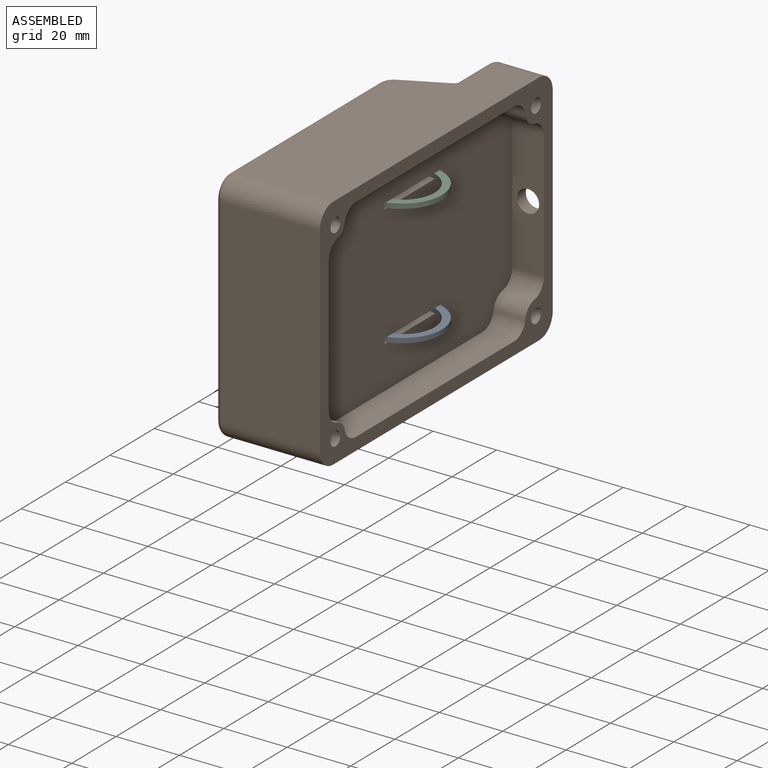
[diagram: assembled view]
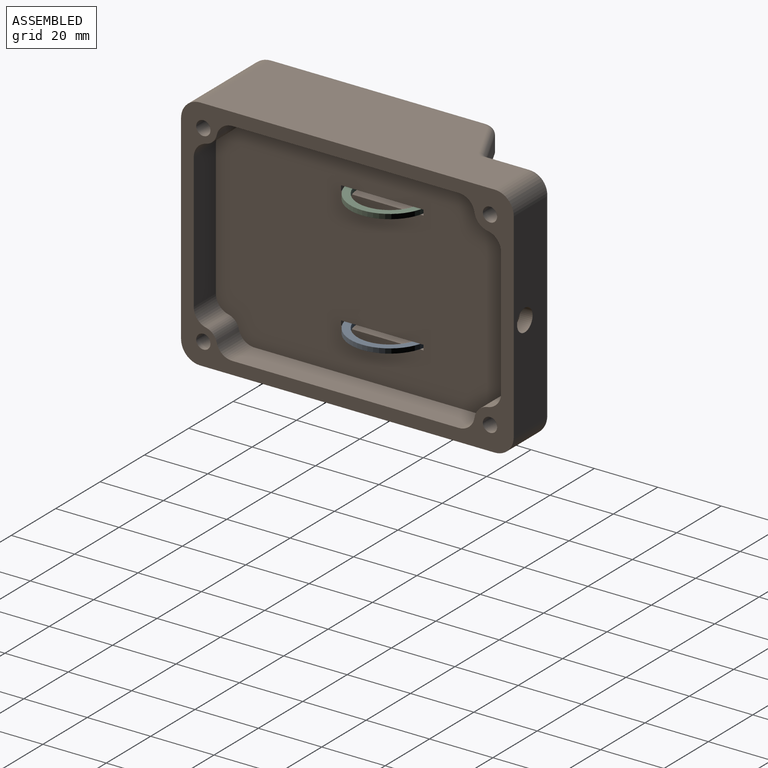
[diagram: assembled view, second angle]
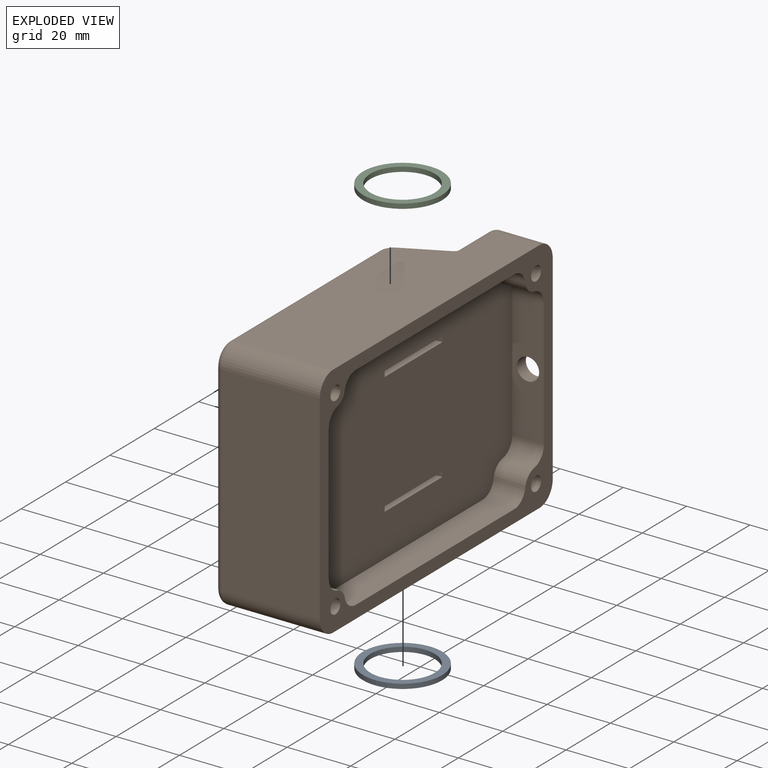
[diagram: exploded view]
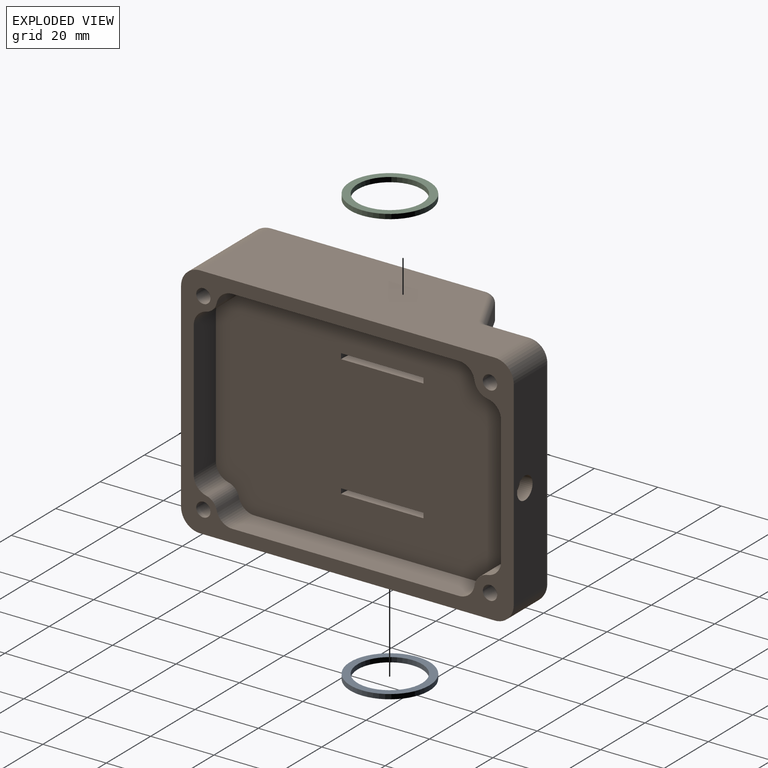
[diagram: exploded view, second angle]
ASSEMBLY  parts=3 mates=2
PART A: 4 faces, bbox 25x25x1.5 mm
  f0: cylinder r=10.15mm len=20.3mm, axis (0,0,-1), area 95.7mm2, adj f2,f3
  f1: cylinder r=12.5mm len=25mm, axis (0,0,-1), area 117.8mm2, adj f2,f3
  f2: plane 25x25mm, normal (0,0,1), area 167.2mm2, adj f0,f1
  f3: plane 25x25mm, normal (0,0,-1), area 167.2mm2, adj f0,f1
PART B: 96 faces, bbox 76x106x33.4 mm
  f0: plane 80.33x61.3mm, normal (0,0,-1), area 4337mm2, adj f3,f11,f12,f17,f18,f23,f24,f25
  f1: plane 97x67mm, normal (0,0,1), area 6143.3mm2, adj f57,f58,f59,f60,f63,f64,f65,f66
  f2: plane 71x18.05mm, normal (0,0,-1), area 963mm2, adj f3,f27,f28,f29,f30,f31,f32,f50
  f3: plane 17.75x0.5mm, normal (0,-0.71,-0.71), area 12.6mm2, adj f0,f2,f7,f48,f50
  f4: plane 50.78x2.6mm, normal (0,0,1), area 132mm2, adj f12,f17,f24,f36
  f5: plane 50.78x2.6mm, normal (0,0,1), area 132mm2, adj f11,f18,f23,f35
  f6: plane 71.38x71mm, normal (0,0,-1), area 1190.2mm2, adj f9,f10,f11,f12,f17,f18,f25,f26
  f7: plane 13.23x6.6mm, normal (0,-0.89,-0.45), area 71.7mm2, adj f3,f9,f11,f39
  f8: plane 13.23x6.6mm, normal (0,-0.89,-0.45), area 71.7mm2, adj f10,f12,f27,f47
  f9: cylinder r=5mm len=4.85mm, axis (1,0,0), area 26.9mm2, adj f6,f7,f11,f40
  f10: cylinder r=5mm len=4.85mm, axis (1,0,0), area 26.9mm2, adj f6,f8,f12,f46
  f11: plane 67.46x16mm, normal (-1,0,0), area 715mm2, adj f0,f5,f6,f7,f9,f23,f34,f35
  f12: plane 67.46x16mm, normal (1,0,0), area 715mm2, adj f0,f4,f6,f8,f10,f24,f33,f36
  f13: plane 93x31mm, normal (1,0,0), area 2558.6mm2, adj f19,f22,f28,f39,f40,f41,f48,f86
  f14: plane 63x31mm, normal (0,1,0), area 1953mm2, adj f19,f20,f43,f86
  f15: plane 93x31mm, normal (-1,0,0), area 2558.6mm2, adj f20,f21,f32,f45,f46,f47,f49,f86
  f16: plane 63x14.5mm, normal (0,-1,0), area 875mm2, adj f21,f22,f30,f86,f95
  f17: plane 56.31x16mm, normal (1,0,0), area 339.6mm2, adj f0,f4,f6,f24,f26,f33,f36,f37
  f18: plane 56.31x16mm, normal (-1,0,0), area 339.6mm2, adj f0,f5,f6,f23,f25,f34,f35,f38
  f19: cylinder r=6mm len=31mm, axis (0,0,1), area 292.2mm2, adj f13,f14,f42,f86
  f20: cylinder r=6mm len=31mm, axis (0,0,-1), area 292.2mm2, adj f14,f15,f44,f86
  f21: cylinder r=6mm len=14.5mm, axis (0,0,1), area 136.7mm2, adj f15,f16,f31,f86
  f22: cylinder r=6mm len=14.5mm, axis (0,0,-1), area 136.7mm2, adj f13,f16,f29,f86
  f23: plane 10.4x2.6mm, normal (0,-1,0), area 27mm2, adj f0,f5,f11,f18
  f24: plane 10.4x2.6mm, normal (0,-1,0), area 27mm2, adj f0,f4,f12,f17
  f25: cylinder r=5mm len=16mm, axis (0,0,1), area 117.2mm2, adj f0,f6,f18,f77
  f26: cylinder r=5mm len=16mm, axis (0,0,-1), area 117.2mm2, adj f0,f6,f17,f76
  f27: plane 17.75x0.5mm, normal (0,-0.71,-0.71), area 12.6mm2, adj f0,f2,f8,f49,f52
  f28: cylinder r=2mm len=14.88mm, axis (0,-1,0), area 45.1mm2, adj f2,f13,f29,f48
  f29: torus R=4mm, axis (0,0,-1), area 26mm2, adj f2,f22,f28,f30
  f30: cylinder r=2mm len=63mm, axis (-1,0,0), area 197.9mm2, adj f2,f16,f29,f31
  f31: torus R=4mm, axis (0,0,-1), area 26mm2, adj f2,f21,f30,f32
  f32: cylinder r=2mm len=14.88mm, axis (0,1,0), area 45.1mm2, adj f2,f15,f31,f49
  f33: plane 2.6x1.6mm, normal (0,-1,0), area 4.2mm2, adj f12,f17,f36,f37
  f34: plane 2.6x1.6mm, normal (0,-1,0), area 4.2mm2, adj f11,f18,f35,f38
  f35: cylinder r=3mm len=3mm, axis (-1,0,0), area 12.3mm2, adj f5,f11,f18,f34
  f36: cylinder r=3mm len=3mm, axis (1,0,0), area 12.3mm2, adj f4,f12,f17,f33
  f37: cylinder r=1mm len=2.6mm, axis (-1,0,0), area 4.1mm2, adj f6,f12,f17,f33
  f38: cylinder r=1mm len=2.6mm, axis (-1,0,0), area 4.1mm2, adj f6,f11,f18,f34
  f39: cylinder r=2mm len=14.42mm, axis (0,-0.45,0.89), area 46.8mm2, adj f7,f13,f40,f48
  f40: torus R=3mm, axis (1,0,0), area 14.9mm2, adj f9,f13,f39,f41
  f41: cylinder r=2mm len=67.38mm, axis (0,-1,0), area 211.7mm2, adj f6,f13,f40,f42
  f42: torus R=4mm, axis (0,0,-1), area 26mm2, adj f6,f19,f41,f43
  f43: cylinder r=2mm len=63mm, axis (1,0,0), area 197.9mm2, adj f6,f14,f42,f44
  f44: torus R=4mm, axis (0,0,-1), area 26mm2, adj f6,f20,f43,f45
  f45: cylinder r=2mm len=67.38mm, axis (0,1,0), area 211.7mm2, adj f6,f15,f44,f46
  f46: torus R=3mm, axis (1,0,0), area 14.9mm2, adj f10,f15,f45,f47
  f47: cylinder r=2mm len=14.42mm, axis (0,-0.45,0.89), area 46.8mm2, adj f8,f15,f46,f49
  f48: cylinder r=2mm len=2.73mm, axis (0,0.71,-0.71), area 3.5mm2, adj f3,f13,f28,f39
  f49: cylinder r=2mm len=2.73mm, axis (0,0.71,-0.71), area 3.5mm2, adj f15,f27,f32,f47
  f50: plane 13.39x6mm, normal (-1,0,0), area 46.5mm2, adj f0,f2,f3,f51,f53,f54
  f51: plane 35.5x5.5mm, normal (0,1,0), area 195.2mm2, adj f2,f50,f52,f53
  f52: plane 13.39x6mm, normal (1,0,0), area 46.5mm2, adj f0,f2,f27,f51,f53,f54
  f53: plane 35.5x3mm, normal (0,0,-1), area 106.5mm2, adj f50,f51,f52,f54
  f54: plane 35.5x10.39mm, normal (0,-0.5,-0.87), area 426mm2, adj f0,f50,f52,f53
  f55: cylinder r=13mm len=6mm, axis (1,0,0), area 10.6mm2, adj f0,f57,f58,f59
  f56: cylinder r=13mm len=6mm, axis (1,0,0), area 10.6mm2, adj f0,f57,f58,f60
  f57: plane 26x7mm, normal (1,0,0), area 176.3mm2, adj f0,f1,f55,f56,f59,f60
  f58: plane 26x7mm, normal (-1,0,0), area 176.3mm2, adj f0,f1,f55,f56,f59,f60
  f59: plane 1.7x1mm, normal (0,1,0), area 1.7mm2, adj f1,f55,f57,f58
  f60: plane 1.7x1mm, normal (0,-1,0), area 1.7mm2, adj f1,f56,f57,f58
  f61: cylinder r=13mm len=6mm, axis (-1,0,0), area 10mm2, adj f0,f63,f64,f66
  f62: cylinder r=13mm len=6mm, axis (-1,0,0), area 10mm2, adj f0,f63,f64,f65
  f63: plane 26x7mm, normal (-1,0,0), area 176.3mm2, adj f0,f1,f61,f62,f65,f66
  f64: plane 26x7mm, normal (1,0,0), area 176.3mm2, adj f0,f1,f61,f62,f65,f66
  f65: plane 1.6x1mm, normal (0,1,0), area 1.6mm2, adj f1,f62,f63,f64
  f66: plane 1.6x1mm, normal (0,-1,0), area 1.6mm2, adj f1,f61,f63,f64
  f67: cylinder r=2.25mm len=30.66mm, axis (0,0,-1), area 433.4mm2, adj f68,f86
  f68: cone r=2.25mm half-angle=45deg, axis (0,0,-1), area 71.1mm2, adj f6,f67
  f69: cylinder r=2.25mm len=30.66mm, axis (0,0,-1), area 433.4mm2, adj f70,f86
  f70: cone r=2.25mm half-angle=45deg, axis (0,0,-1), area 71.1mm2, adj f6,f69
  f71: cylinder r=2.25mm len=14.16mm, axis (0,0,-1), area 200.2mm2, adj f72,f86
  f72: cone r=2.25mm half-angle=45deg, axis (0,0,-1), area 71.1mm2, adj f2,f71
  f73: cylinder r=2.25mm len=14.16mm, axis (0,0,-1), area 200.2mm2, adj f74,f86
  f74: cone r=2.25mm half-angle=45deg, axis (0,0,-1), area 71.1mm2, adj f2,f73
  f75: cylinder r=37.5mm len=29.73mm, axis (0,0,-1), area 489mm2, adj f0,f6,f76,f77
  f76: cylinder r=30mm len=16mm, axis (0,0,-1), area 144.7mm2, adj f0,f6,f26,f75
  f77: cylinder r=30mm len=16mm, axis (0,0,-1), area 144.7mm2, adj f0,f6,f25,f75
  f78: plane 42.72x10mm, normal (0,-1,0), area 427.2mm2, adj f1,f86,f87,f88
  f79: cylinder r=4.3mm len=10mm, axis (0,0,-1), area 49.4mm2, adj f1,f86,f88,f93
  f80: plane 71.53x10mm, normal (-1,0,0), area 715.3mm2, adj f1,f86,f93,f94
  f81: cylinder r=4.95mm len=10mm, axis (0,0,-1), area 62.8mm2, adj f1,f86,f89,f94
  f82: plane 40.33x10mm, normal (0,1,0), area 364.8mm2, adj f1,f86,f89,f90,f95
  f83: cylinder r=4.95mm len=10mm, axis (0,0,-1), area 62.8mm2, adj f1,f86,f90,f92
  f84: plane 71.53x10mm, normal (1,0,0), area 715.3mm2, adj f1,f86,f91,f92
  f85: cylinder r=4.3mm len=10mm, axis (0,0,-1), area 49.4mm2, adj f1,f86,f87,f91
  f86: plane 105x75mm, normal (0,0,1), area 1551.4mm2, adj f13,f14,f15,f16,f19,f20,f21,f22
  f87: cylinder r=5mm len=10mm, axis (0,0,-1), area 67.9mm2, adj f1,f78,f85,f86
  f88: cylinder r=5mm len=10mm, axis (0,0,-1), area 67.9mm2, adj f1,f78,f79,f86
  f89: cylinder r=5mm len=10mm, axis (0,0,-1), area 71mm2, adj f1,f81,f82,f86
  f90: cylinder r=5mm len=10mm, axis (0,0,-1), area 71mm2, adj f1,f82,f83,f86
  f91: cylinder r=5mm len=10mm, axis (0,0,-1), area 67.9mm2, adj f1,f84,f85,f86
  f92: cylinder r=5mm len=10mm, axis (0,0,-1), area 71mm2, adj f1,f83,f84,f86
  f93: cylinder r=5mm len=10mm, axis (0,0,-1), area 67.9mm2, adj f1,f79,f80,f86
  f94: cylinder r=5mm len=10mm, axis (0,0,-1), area 71mm2, adj f1,f80,f81,f86
  f95: cylinder r=3.5mm len=7mm, axis (0,-1,0), area 88mm2, adj f16,f82
PART C: same geometry as A
PLACE A t=(59.3,33.01,-24.97)mm
PLACE B rot(axis=(0.71,0,0.71),180deg) t=(55.73,29.01,-5.02)mm
PLACE C rot(axis=(1,0,0),180deg) t=(59.3,33.01,14.88)mm
MATE fastened C.f1 <-> B.f57  axis (0,0,-1) through (59.3,33.01,13.38)mm
MATE fastened B.f63 <-> A.f1  axis (0,0,-1) through (59.3,33.01,-23.47)mm
